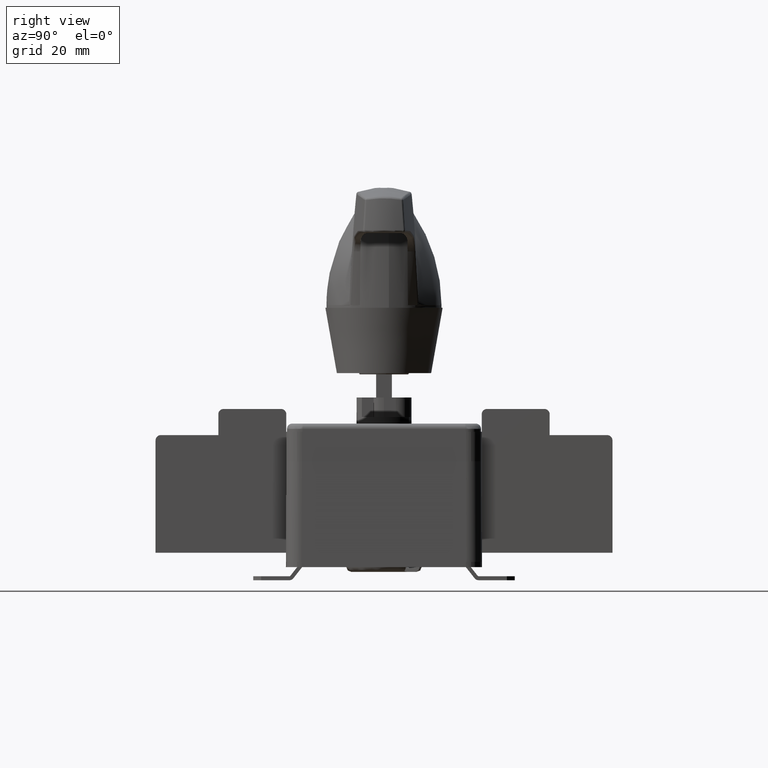
[diagram: clean part render]
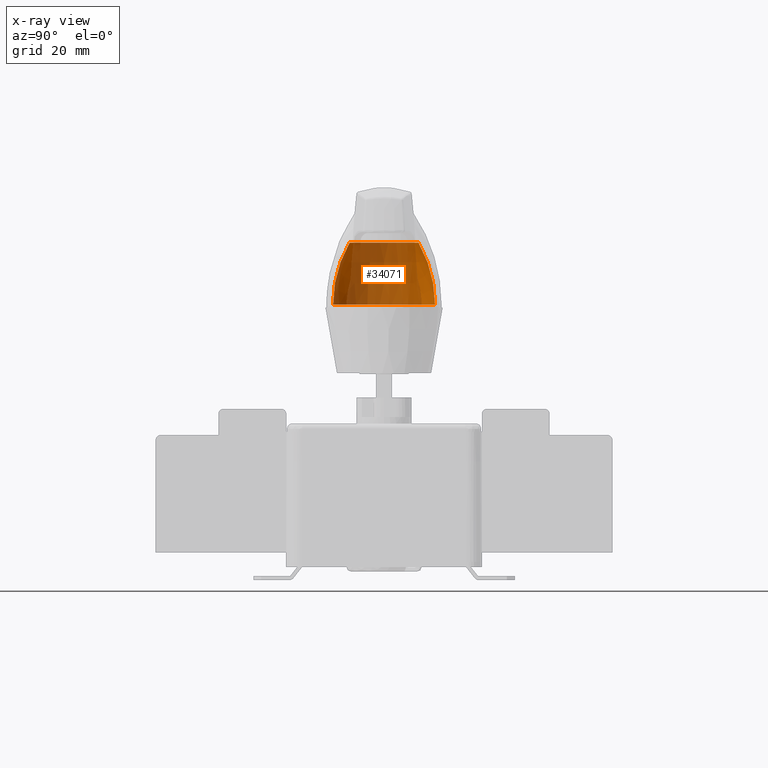
[diagram: x-ray — body ghosted, one internal face saturated and labeled with its STEP entity id]
A machine part, right view, then the same camera in x-ray: the body is ghosted and one INTERNAL B-rep face — a face not visible from any outside direction — is saturated and labeled: STEP entity #34071.
In plain terms, the highlighted face is a freeform B-spline surface patch.
Its self-contained STEP definition (entity closure, byte-faithful):
#373 = VERTEX_POINT ( 'NONE', #24305 ) ;
#1289 = CARTESIAN_POINT ( 'NONE',  ( -31.69839178420926000, 15.88777093338302400, 82.35355025965569100 ) ) ;
#1448 = CARTESIAN_POINT ( 'NONE',  ( -33.92887884318355400, -10.38473014596300300, 82.35355025965569100 ) ) ;
#3171 = CIRCLE ( 'NONE', #12350, 19.50037924748749100 ) ;
#4870 = DIRECTION ( 'NONE',  ( 0.9964155163343534300, -0.08459384616001276700, 0.0000000000000000000 ) ) ;
#4942 = CARTESIAN_POINT ( 'NONE',  ( -42.57653523004641000, -13.82821541882709400, 75.11051067372551400 ) ) ;
#5251 = AXIS2_PLACEMENT_3D ( 'NONE', #21521, #4870, #28503 ) ;
#6109 = EDGE_CURVE ( 'NONE', #373, #17634, #20891, .T. ) ;
#7483 = ORIENTED_EDGE ( 'NONE', *, *, #6109, .F. ) ;
#7486 = ORIENTED_EDGE ( 'NONE', *, *, #38424, .T. ) ;
#9858 = DIRECTION ( 'NONE',  ( -0.0000000000000000000, -0.0000000000000000000, -1.000000000000000000 ) ) ;
#10153 = DIRECTION ( 'NONE',  ( 0.08459384616001264200, 0.9964155163343534300, 0.0000000000000000000 ) ) ;
#10184 = CARTESIAN_POINT ( 'NONE',  ( -6.541134234350379600, 0.5210333347357160000, 58.68500528625580200 ) ) ;
#11162 = AXIS2_PLACEMENT_3D ( 'NONE', #36358, #9858, #10153 ) ;
#11515 = EDGE_CURVE ( 'NONE', #17634, #15920, #31199, .T. ) ;
#11557 = DIRECTION ( 'NONE',  ( 0.0000000000000000000, 0.0000000000000000000, 1.000000000000000000 ) ) ;
#12350 = AXIS2_PLACEMENT_3D ( 'NONE', #10184, #29808, #36525 ) ;
#13556 = DIRECTION ( 'NONE',  ( -0.9964155163343534300, 0.08459384616001264200, 0.0000000000000000000 ) ) ;
#14824 = CARTESIAN_POINT ( 'NONE',  ( -4.891522152226520400, 19.95151379133666900, 58.68500528625580200 ) ) ;
#14907 = FACE_OUTER_BOUND ( 'NONE', #18057, .T. ) ;
#14936 =( BOUNDED_SURFACE ( )  B_SPLINE_SURFACE ( 3, 3, ( 
 ( #31663, #1289, #1448, #25097 ),
 ( #34580, #18253, #4942, #24516 ),
 ( #41440, #21596, #28444, #28159 ),
 ( #28011, #38381, #34442, #41158 ) ),
 .UNSPECIFIED., .F., .F., .T. ) 
 B_SPLINE_SURFACE_WITH_KNOTS ( ( 4, 4 ),
 ( 4, 4 ),
 ( 0.0000000000000000000, 1.000000000000000000 ),
 ( 0.0000000000000000000, 1.000000000000000000 ),
 .UNSPECIFIED. ) 
 GEOMETRIC_REPRESENTATION_ITEM ( )  RATIONAL_B_SPLINE_SURFACE ( (
 ( 1.000000000000000000, 0.3333333333333334300, 0.3333333333333334300, 1.000000000000000000),
 ( 0.9774543032519875700, 0.3258181010839959500, 0.3258181010839959500, 0.9774543032519875700),
 ( 0.9774543032519875700, 0.3258181010839959500, 0.3258181010839959500, 0.9774543032519875700),
 ( 1.000000000000000000, 0.3333333333333334300, 0.3333333333333334300, 1.000000000000000000) ) ) 
 REPRESENTATION_ITEM ( '' )  SURFACE ( )  );
#15808 = AXIS2_PLACEMENT_3D ( 'NONE', #38042, #11557, #28107 ) ;
#15920 = VERTEX_POINT ( 'NONE', #27278 ) ;
#17634 = VERTEX_POINT ( 'NONE', #14824 ) ;
#18057 = EDGE_LOOP ( 'NONE', ( #37684, #7486, #21744, #24664, #7483 ) ) ;
#18253 = CARTESIAN_POINT ( 'NONE',  ( -39.64177383461826300, 20.73980487915486000, 75.11051067372551400 ) ) ;
#19814 = CARTESIAN_POINT ( 'NONE',  ( -8.909729844827118900, -27.37822323454510000, 58.68500528625580200 ) ) ;
#20891 = CIRCLE ( 'NONE', #30742, 47.49999999999997900 ) ;
#21410 = CIRCLE ( 'NONE', #11162, 13.18350660375011400 ) ;
#21521 = CARTESIAN_POINT ( 'NONE',  ( -4.172538623873636600, 28.42028990401653500, 58.68500528625580200 ) ) ;
#21596 = CARTESIAN_POINT ( 'NONE',  ( -43.75248306542842200, 23.25073795558438400, 67.03901826238217200 ) ) ;
#21744 = ORIENTED_EDGE ( 'NONE', *, *, #28979, .F. ) ;
#24109 = CARTESIAN_POINT ( 'NONE',  ( -8.190746316474241300, -18.90944712186523400, 58.68500528625580200 ) ) ;
#24305 = CARTESIAN_POINT ( 'NONE',  ( -5.425890704863232500, 13.65728387440874200, 82.35355025965569100 ) ) ;
#24356 = VERTEX_POINT ( 'NONE', #24109 ) ;
#24516 = CARTESIAN_POINT ( 'NONE',  ( -8.008514932064462900, -16.76297681425526100, 75.11051067372551400 ) ) ;
#24664 = ORIENTED_EDGE ( 'NONE', *, *, #11515, .F. ) ;
#25097 = CARTESIAN_POINT ( 'NONE',  ( -7.656377763837527400, -12.61521720493730000, 82.35355025965567700 ) ) ;
#25477 = CIRCLE ( 'NONE', #5251, 47.49999999999997900 ) ;
#27278 = CARTESIAN_POINT ( 'NONE',  ( -26.04151348183788200, 0.5210333347357174500, 58.68500528625580200 ) ) ;
#28011 = CARTESIAN_POINT ( 'NONE',  ( -4.891522152226522200, 19.95151379133666600, 58.68500528625580200 ) ) ;
#28107 = DIRECTION ( 'NONE',  ( 0.08459384616001264200, 0.9964155163343533200, 0.0000000000000000000 ) ) ;
#28159 = CARTESIAN_POINT ( 'NONE',  ( -8.190746316474241300, -18.90944712186523400, 67.03901826238215700 ) ) ;
#28444 = CARTESIAN_POINT ( 'NONE',  ( -47.05170722967612600, -15.61022295761750900, 67.03901826238217200 ) ) ;
#28503 = DIRECTION ( 'NONE',  ( -0.08459384616001276700, -0.9964155163343533200, 0.0000000000000000000 ) ) ;
#28979 = EDGE_CURVE ( 'NONE', #15920, #24356, #3171, .T. ) ;
#29808 = DIRECTION ( 'NONE',  ( 0.0000000000000000000, 0.0000000000000000000, 1.000000000000000000 ) ) ;
#30742 = AXIS2_PLACEMENT_3D ( 'NONE', #19814, #13556, #40077 ) ;
#31199 = CIRCLE ( 'NONE', #15808, 19.50037924748749100 ) ;
#31663 = CARTESIAN_POINT ( 'NONE',  ( -5.425890704863233400, 13.65728387440873200, 82.35355025965567700 ) ) ;
#34071 = ADVANCED_FACE ( 'NONE', ( #14907 ), #14936, .F. ) ;
#34442 = CARTESIAN_POINT ( 'NONE',  ( -47.05170722967612600, -15.61022295761751100, 58.68500528625580200 ) ) ;
#34513 = VERTEX_POINT ( 'NONE', #37460 ) ;
#34580 = CARTESIAN_POINT ( 'NONE',  ( -5.073753536636298900, 17.80504348372669200, 75.11051067372551400 ) ) ;
#36358 = CARTESIAN_POINT ( 'NONE',  ( -6.541134234350379600, 0.5210333347357160000, 82.35355025965569100 ) ) ;
#36525 = DIRECTION ( 'NONE',  ( 0.08459384616001264200, 0.9964155163343533200, 0.0000000000000000000 ) ) ;
#37460 = CARTESIAN_POINT ( 'NONE',  ( -7.656377763837528300, -12.61521720493731100, 82.35355025965569100 ) ) ;
#37684 = ORIENTED_EDGE ( 'NONE', *, *, #42786, .F. ) ;
#38042 = CARTESIAN_POINT ( 'NONE',  ( -6.541134234350379600, 0.5210333347357160000, 58.68500528625580200 ) ) ;
#38381 = CARTESIAN_POINT ( 'NONE',  ( -43.75248306542842200, 23.25073795558438400, 58.68500528625580200 ) ) ;
#38424 = EDGE_CURVE ( 'NONE', #34513, #24356, #25477, .T. ) ;
#40077 = DIRECTION ( 'NONE',  ( 0.08459384616001264200, 0.9964155163343533200, 0.0000000000000000000 ) ) ;
#41158 = CARTESIAN_POINT ( 'NONE',  ( -8.190746316474241300, -18.90944712186523100, 58.68500528625580200 ) ) ;
#41440 = CARTESIAN_POINT ( 'NONE',  ( -4.891522152226521300, 19.95151379133666600, 67.03901826238215700 ) ) ;
#42786 = EDGE_CURVE ( 'NONE', #34513, #373, #21410, .T. ) ;